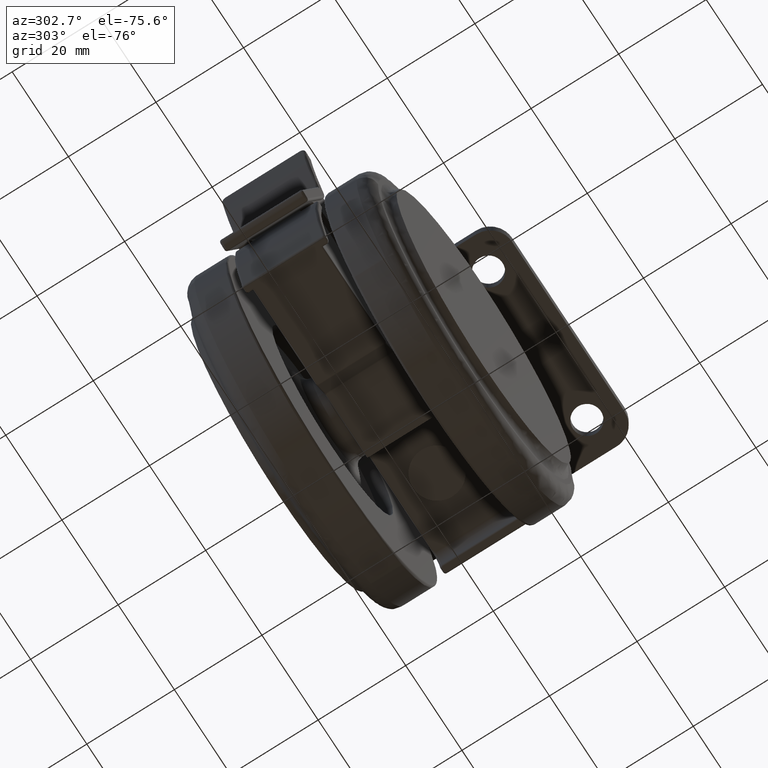
[diagram: clean part render]
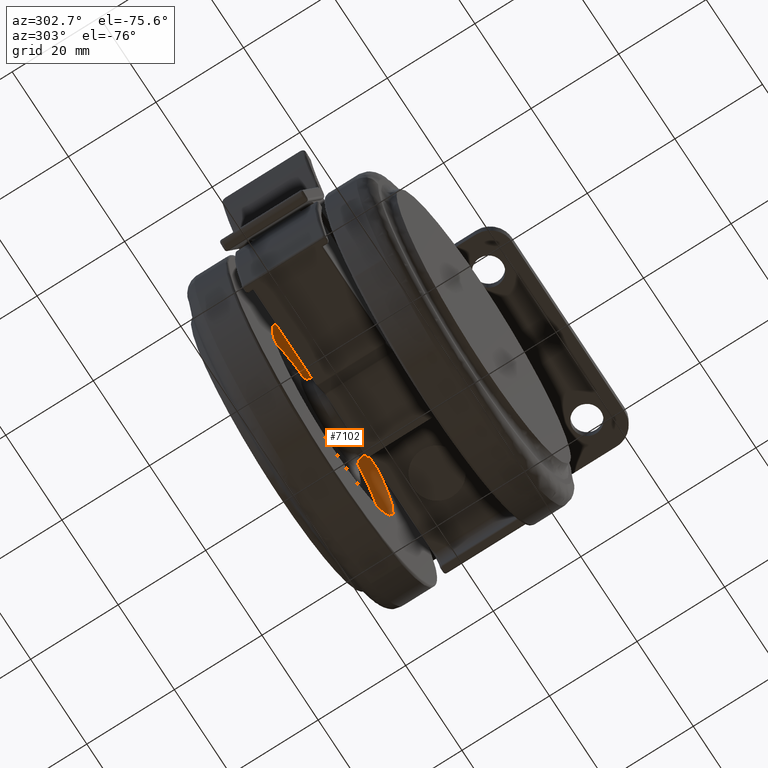
[diagram: same view with one face highlighted and labeled with its STEP entity id]
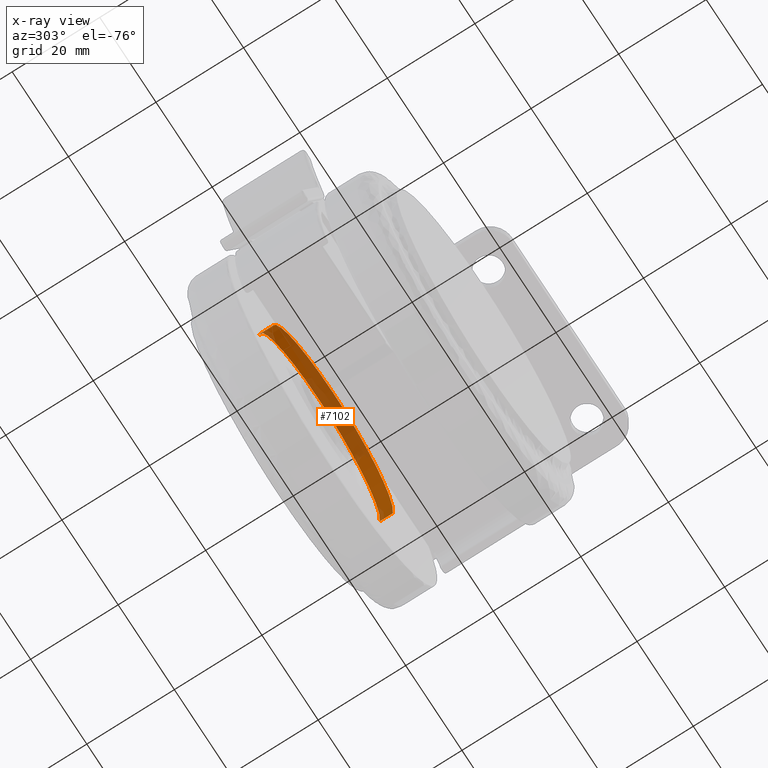
[diagram: x-ray of the same camera — body ghosted, the highlighted face saturated]
A machine part, auxiliary view. The second image highlights one B-rep face of the part: STEP entity #7102.
The next image is the same camera in x-ray: the body ghosted, the highlighted face saturated — about 58% of this face is hidden behind the body in this view.
In plain terms, the highlighted face is a freeform B-spline surface patch.
Its self-contained STEP definition (entity closure, byte-faithful):
#6910=CARTESIAN_POINT('',(1.433723939309730,14.000000000000639,-42.186854496748794));
#6911=VERTEX_POINT('',#6910);
#6925=CARTESIAN_POINT('',(-20.0,14.0,-19.0));
#6926=VERTEX_POINT('',#6925);
#6927=CARTESIAN_POINT('',(1.433723939309730,14.000000000000647,-42.186854496748794));
#6928=CARTESIAN_POINT('',(1.499999999994096,14.000000000000632,-41.344729232697141));
#6929=CARTESIAN_POINT('',(1.499999999994214,14.000000000000620,-40.499999999999552));
#6930=CARTESIAN_POINT('',(1.499999999997219,14.000000000000295,-18.999999999999783));
#6931=CARTESIAN_POINT('',(-20.0,14.0,-19.0));
#6939=(BOUNDED_CURVE()B_SPLINE_CURVE(2,(#6927,#6928,#6929,#6930,#6931),.UNSPECIFIED.,.F.,.U.)B_SPLINE_CURVE_WITH_KNOTS((3,2,3),(0.236331429090037,0.250000000000000,0.500000000000000),.UNSPECIFIED.)CURVE()GEOMETRIC_REPRESENTATION_ITEM()RATIONAL_B_SPLINE_CURVE((0.969723624252493,0.983986273078404,1.0,0.707106781186548,1.0))REPRESENTATION_ITEM(''));
#6940=EDGE_CURVE('',#6911,#6926,#6939,.T.);
#6942=CARTESIAN_POINT('',(-41.433723939309708,14.000000000000639,-38.813145503251206));
#6943=VERTEX_POINT('',#6942);
#6944=CARTESIAN_POINT('',(-20.0,14.0,-19.0));
#6945=CARTESIAN_POINT('',(-39.874410509619800,14.000000000000323,-19.000000000000245));
#6946=CARTESIAN_POINT('',(-41.433723939309708,14.000000000000643,-38.813145503251214));
#6954=(BOUNDED_CURVE()B_SPLINE_CURVE(2,(#6944,#6945,#6946),.UNSPECIFIED.,.F.,.U.)B_SPLINE_CURVE_WITH_KNOTS((3,3),(0.500000000000000,0.736331429090037),.UNSPECIFIED.)CURVE()GEOMETRIC_REPRESENTATION_ITEM()RATIONAL_B_SPLINE_CURVE((1.0,0.723120508108143,0.969723624252493))REPRESENTATION_ITEM(''));
#6955=EDGE_CURVE('',#6926,#6943,#6954,.T.);
#7001=CARTESIAN_POINT('',(-41.433723923697293,11.0,-38.813145304872982));
#7002=VERTEX_POINT('',#7001);
#7003=CARTESIAN_POINT('',(-41.433723923697293,11.0,-38.813145304872982));
#7004=CARTESIAN_POINT('',(-41.433723939309708,14.000000000000639,-38.813145503251206));
#7005=QUASI_UNIFORM_CURVE('',1,(#7003,#7004),.UNSPECIFIED.,.F.,.U.);
#7006=EDGE_CURVE('',#7002,#6943,#7005,.T.);
#7025=CARTESIAN_POINT('',(1.433723923697319,11.0,-42.186854695127039));
#7026=VERTEX_POINT('',#7025);
#7040=CARTESIAN_POINT('',(1.433723923697319,11.0,-42.186854695127039));
#7041=CARTESIAN_POINT('',(1.433723939309730,14.000000000000639,-42.186854496748794));
#7042=QUASI_UNIFORM_CURVE('',1,(#7040,#7041),.UNSPECIFIED.,.F.,.U.);
#7043=EDGE_CURVE('',#7026,#6911,#7042,.T.);
#7048=CARTESIAN_POINT('',(-41.433722675262217,10.925000000000001,-38.813129441851302));
#7049=CARTESIAN_POINT('',(-39.746852117113512,10.924999999999995,-17.379406766589067));
#7050=CARTESIAN_POINT('',(-18.313129441851281,10.924999999999971,-19.066277324737761));
#7051=CARTESIAN_POINT('',(3.120593233410954,10.924999999999946,-20.753147882886463));
#7052=CARTESIAN_POINT('',(1.433722675262256,10.924999999999949,-42.186870558148698));
#7053=CARTESIAN_POINT('',(-41.433722675262217,14.076875000000051,-38.813129441851302));
#7054=CARTESIAN_POINT('',(-39.746852117113512,14.076875000000051,-17.379406766589067));
#7055=CARTESIAN_POINT('',(-18.313129441851281,14.076875000000021,-19.066277324737761));
#7056=CARTESIAN_POINT('',(3.120593233410956,14.076874999999999,-20.753147882886463));
#7057=CARTESIAN_POINT('',(1.433722675262260,14.076874999999999,-42.186870558148698));
#7065=(BOUNDED_SURFACE()B_SPLINE_SURFACE(2,1,((#7048,#7053),(#7049,#7054),(#7050,#7055),(#7051,#7056),(#7052,#7057)),.UNSPECIFIED.,.F.,.F.,.U.)B_SPLINE_SURFACE_WITH_KNOTS((3,2,3),(2,2),(0.0,35.622366364086169,71.244732728172337),(0.0,3.151875000000055),.UNSPECIFIED.)GEOMETRIC_REPRESENTATION_ITEM()RATIONAL_B_SPLINE_SURFACE(((1.0,1.0),(0.707106781186548,0.707106781186548),(1.0,1.0),(0.707106781186548,0.707106781186548),(1.0,1.0)))REPRESENTATION_ITEM('')SURFACE());
#7066=ORIENTED_EDGE('',*,*,#6940,.F.);
#7067=ORIENTED_EDGE('',*,*,#7043,.F.);
#7068=CARTESIAN_POINT('',(-20.0,11.0,-19.0));
#7069=VERTEX_POINT('',#7068);
#7070=CARTESIAN_POINT('',(1.433723923697318,11.000000000000004,-42.186854695127039));
#7071=CARTESIAN_POINT('',(1.499999999994239,10.999999999999998,-41.344729332346574));
#7072=CARTESIAN_POINT('',(1.499999999994354,11.0,-40.499999999999552));
#7073=CARTESIAN_POINT('',(1.499999999997287,10.999999999999998,-18.999999999999794));
#7074=CARTESIAN_POINT('',(-20.0,11.0,-19.0));
#7082=(BOUNDED_CURVE()B_SPLINE_CURVE(2,(#7070,#7071,#7072,#7073,#7074),.UNSPECIFIED.,.F.,.U.)B_SPLINE_CURVE_WITH_KNOTS((3,2,3),(0.236331427503430,0.250000000000000,0.500000000000000),.UNSPECIFIED.)CURVE()GEOMETRIC_REPRESENTATION_ITEM()RATIONAL_B_SPLINE_CURVE((0.969723620941362,0.983986271219578,1.0,0.707106781186548,1.0))REPRESENTATION_ITEM(''));
#7083=EDGE_CURVE('',#7026,#7069,#7082,.T.);
#7084=ORIENTED_EDGE('',*,*,#7083,.T.);
#7085=CARTESIAN_POINT('',(-20.0,11.0,-19.0));
#7086=CARTESIAN_POINT('',(-39.874410325104968,11.0,-19.000000000000231));
#7087=CARTESIAN_POINT('',(-41.433723923697293,11.0,-38.813145304872982));
#7095=(BOUNDED_CURVE()B_SPLINE_CURVE(2,(#7085,#7086,#7087),.UNSPECIFIED.,.F.,.U.)B_SPLINE_CURVE_WITH_KNOTS((3,3),(0.500000000000000,0.736331427503430),.UNSPECIFIED.)CURVE()GEOMETRIC_REPRESENTATION_ITEM()RATIONAL_B_SPLINE_CURVE((1.0,0.723120509966969,0.969723620941362))REPRESENTATION_ITEM(''));
#7096=EDGE_CURVE('',#7069,#7002,#7095,.T.);
#7097=ORIENTED_EDGE('',*,*,#7096,.T.);
#7098=ORIENTED_EDGE('',*,*,#7006,.T.);
#7099=ORIENTED_EDGE('',*,*,#6955,.F.);
#7100=EDGE_LOOP('',(#7066,#7067,#7084,#7097,#7098,#7099));
#7101=FACE_OUTER_BOUND('',#7100,.T.);
#7102=ADVANCED_FACE('',(#7101),#7065,.F.);